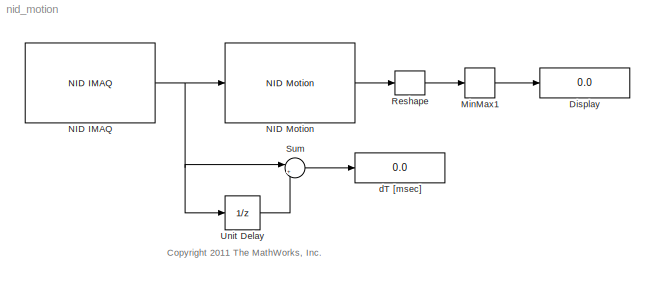
MODEL nid_motion
KIND model
BLOCK [Display] Display
  Decimation = 1
  Ports = [1]
  SID = 82
BLOCK [MinMax] MinMax1
  Function = max
  InputSameDT = off
  Ports = [1, 1]
  SID = 63
  SaturateOnIntegerOverflow = off
BLOCK [Reference] NID IMAQ  REF=nid_lib/NID IMAQ
  Ports = [0, 1]
  SID = 78
  SourceBlock = nid_lib/NID IMAQ
  SourceType = NID IMAQ
  imaq_depth = off
  imaq_image = off
  imaq_ir = off
  imaq_motion = on
  imaq_sample_time = 1/30
  imaq_skeleton = off
  mirror_image = off
  view_point = off
BLOCK [Reference] NID Motion  REF=nid_lib/NID Motion
  Ports = [1, 1]
  SID = 79
  SourceBlock = nid_lib/NID Motion
  SourceType = NID Motion
  viewer = off
BLOCK [Reshape] Reshape
  Ports = [1, 1]
  SID = 62
BLOCK [Sum] Sum
  IconShape = round
  InputSameDT = off
  Inputs = |+-
  OutDataTypeStr = Inherit: Inherit via internal rule
  Ports = [2, 1]
  SID = 72
  SaturateOnIntegerOverflow = off
BLOCK [UnitDelay] Unit Delay
  SID = 73
  SampleTime = -1
BLOCK [Display] dT [msec]
  Decimation = 1
  Ports = [1]
  SID = 81
ANNOTATION (root): <copyright redacted>
LINE MinMax1:1 -> Display:1
NET NID IMAQ:1 -> NID Motion:1, Sum:1, Unit Delay:1
LINE NID Motion:1 -> Reshape:1
LINE Reshape:1 -> MinMax1:1
LINE Sum:1 -> dT [msec]:1
LINE Unit Delay:1 -> Sum:2
note: NET lines group one-source signal fan-out (src -> all destinations, sorted); 1:1 wires keep LINE
